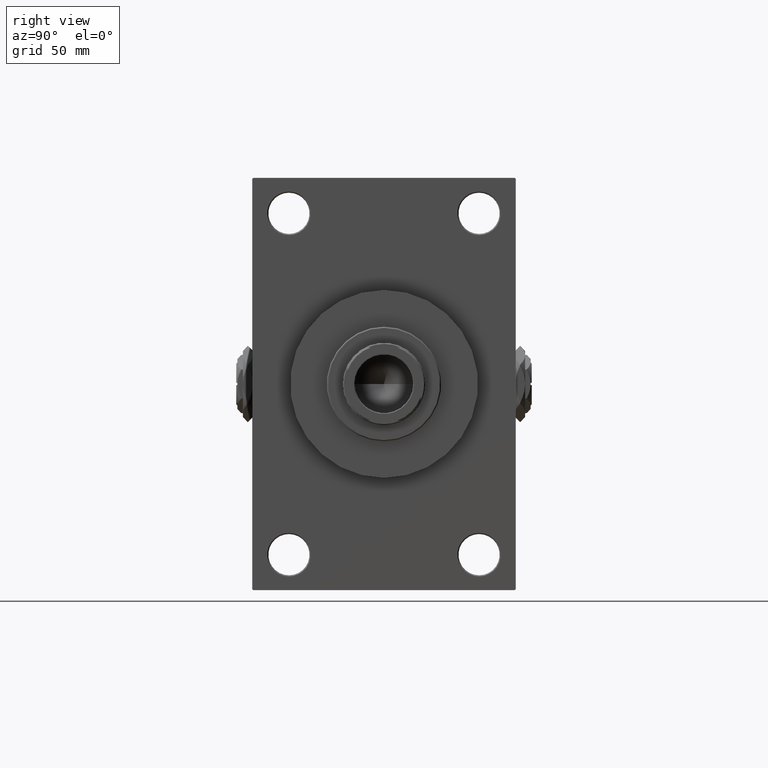
[diagram: clean part render]
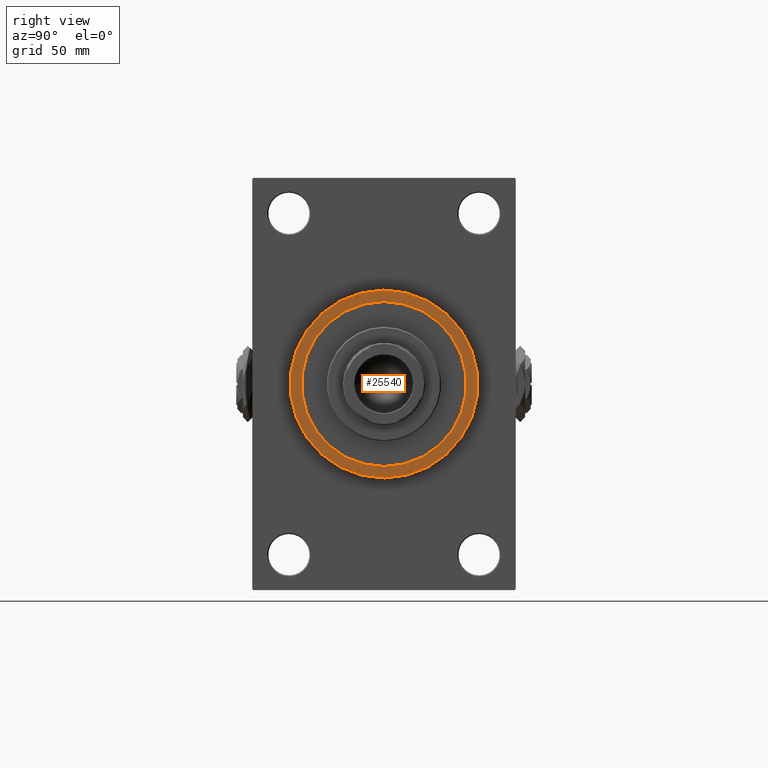
[diagram: same view with one face highlighted and labeled with its STEP entity id]
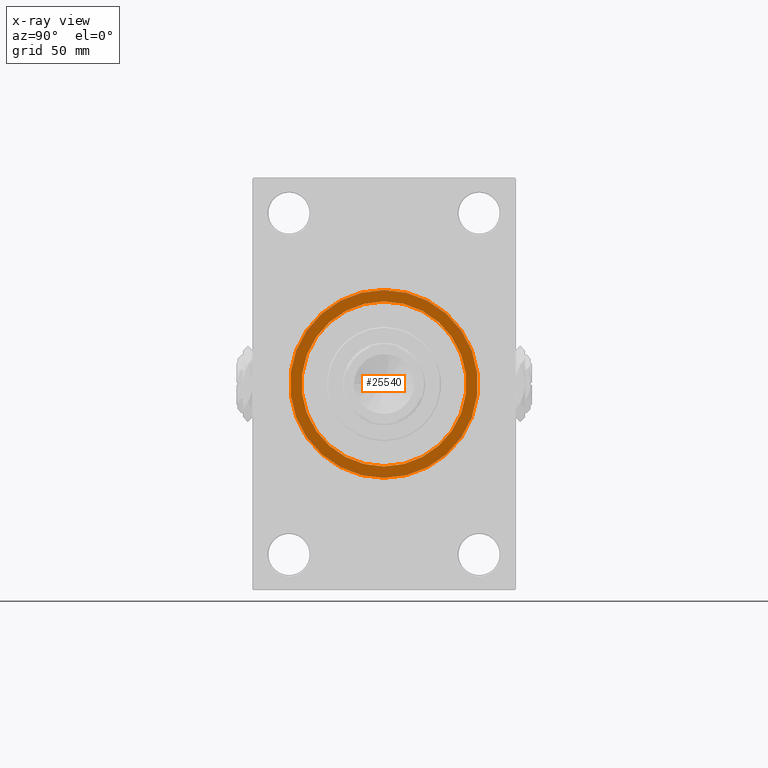
[diagram: x-ray of the same camera — body ghosted, the highlighted face saturated]
A machine part, right view. The second image highlights one B-rep face of the part: STEP entity #25540.
The next image is the same camera in x-ray: the body ghosted, the highlighted face saturated — about 0% of this face is hidden behind the body in this view.
In plain terms, the highlighted planar face has unit normal (1, 0, 0).
Its self-contained STEP definition (entity closure, byte-faithful):
#1453 = DIRECTION ( 'NONE',  ( 0.000000000000000000, 0.000000000000000000, -1.000000000000000000 ) ) ;
#2358 = DIRECTION ( 'NONE',  ( 0.000000000000000000, 0.000000000000000000, -1.000000000000000000 ) ) ;
#2527 = AXIS2_PLACEMENT_3D ( 'NONE', #23806, #42968, #47674 ) ;
#3098 = CARTESIAN_POINT ( 'NONE',  ( 179.0000000000000000, 0.000000000000000000, 0.000000000000000000 ) ) ;
#4093 = CIRCLE ( 'NONE', #37482, 36.00000000000000000 ) ;
#8011 = VERTEX_POINT ( 'NONE', #27228 ) ;
#8298 = EDGE_CURVE ( 'NONE', #8011, #36218, #22388, .T. ) ;
#8890 = CARTESIAN_POINT ( 'NONE',  ( 179.0000000000000000, 0.000000000000000000, -36.00000000000000000 ) ) ;
#9532 = EDGE_LOOP ( 'NONE', ( #14353, #46387 ) ) ;
#9680 = CIRCLE ( 'NONE', #2527, 41.00000000000000000 ) ;
#12735 = CARTESIAN_POINT ( 'NONE',  ( 179.0000000000000000, 4.408728476930470856E-15, 36.00000000000000000 ) ) ;
#14353 = ORIENTED_EDGE ( 'NONE', *, *, #24927, .F. ) ;
#15505 = DIRECTION ( 'NONE',  ( 1.000000000000000000, 0.000000000000000000, 0.000000000000000000 ) ) ;
#20230 = EDGE_LOOP ( 'NONE', ( #22620, #43979 ) ) ;
#21012 = CARTESIAN_POINT ( 'NONE',  ( 179.0000000000000000, 0.000000000000000000, 0.000000000000000000 ) ) ;
#22388 = CIRCLE ( 'NONE', #47806, 41.00000000000000000 ) ;
#22620 = ORIENTED_EDGE ( 'NONE', *, *, #40537, .T. ) ;
#23806 = CARTESIAN_POINT ( 'NONE',  ( 179.0000000000000000, 0.000000000000000000, 0.000000000000000000 ) ) ;
#23889 = DIRECTION ( 'NONE',  ( 0.000000000000000000, 0.000000000000000000, -1.000000000000000000 ) ) ;
#24927 = EDGE_CURVE ( 'NONE', #48719, #30236, #35530, .T. ) ;
#24986 = DIRECTION ( 'NONE',  ( 1.000000000000000000, 0.000000000000000000, 0.000000000000000000 ) ) ;
#25540 = ADVANCED_FACE ( 'NONE', ( #32029, #39267 ), #39510, .T. ) ;
#27228 = CARTESIAN_POINT ( 'NONE',  ( 179.0000000000000000, 5.021051876504148963E-15, -41.00000000000000000 ) ) ;
#30236 = VERTEX_POINT ( 'NONE', #12735 ) ;
#32029 = FACE_BOUND ( 'NONE', #9532, .T. ) ;
#32211 = DIRECTION ( 'NONE',  ( 1.000000000000000000, 0.000000000000000000, 0.000000000000000000 ) ) ;
#35530 = CIRCLE ( 'NONE', #41892, 36.00000000000000000 ) ;
#35832 = CARTESIAN_POINT ( 'NONE',  ( 179.0000000000000000, 0.000000000000000000, 0.000000000000000000 ) ) ;
#36218 = VERTEX_POINT ( 'NONE', #44550 ) ;
#36681 = EDGE_CURVE ( 'NONE', #30236, #48719, #4093, .T. ) ;
#37482 = AXIS2_PLACEMENT_3D ( 'NONE', #35832, #15505, #23889 ) ;
#39267 = FACE_OUTER_BOUND ( 'NONE', #20230, .T. ) ;
#39510 = PLANE ( 'NONE',  #48261 ) ;
#39750 = CARTESIAN_POINT ( 'NONE',  ( 179.0000000000000000, 0.000000000000000000, 0.000000000000000000 ) ) ;
#40176 = DIRECTION ( 'NONE',  ( 0.000000000000000000, 0.000000000000000000, -1.000000000000000000 ) ) ;
#40537 = EDGE_CURVE ( 'NONE', #36218, #8011, #9680, .T. ) ;
#41892 = AXIS2_PLACEMENT_3D ( 'NONE', #3098, #24986, #40176 ) ;
#42968 = DIRECTION ( 'NONE',  ( 1.000000000000000000, 0.000000000000000000, 0.000000000000000000 ) ) ;
#43979 = ORIENTED_EDGE ( 'NONE', *, *, #8298, .T. ) ;
#44550 = CARTESIAN_POINT ( 'NONE',  ( 179.0000000000000000, 0.000000000000000000, 41.00000000000000000 ) ) ;
#46387 = ORIENTED_EDGE ( 'NONE', *, *, #36681, .F. ) ;
#46965 = DIRECTION ( 'NONE',  ( 1.000000000000000000, 0.000000000000000000, 0.000000000000000000 ) ) ;
#47674 = DIRECTION ( 'NONE',  ( 0.000000000000000000, 0.000000000000000000, -1.000000000000000000 ) ) ;
#47806 = AXIS2_PLACEMENT_3D ( 'NONE', #21012, #32211, #2358 ) ;
#48261 = AXIS2_PLACEMENT_3D ( 'NONE', #39750, #46965, #1453 ) ;
#48719 = VERTEX_POINT ( 'NONE', #8890 ) ;